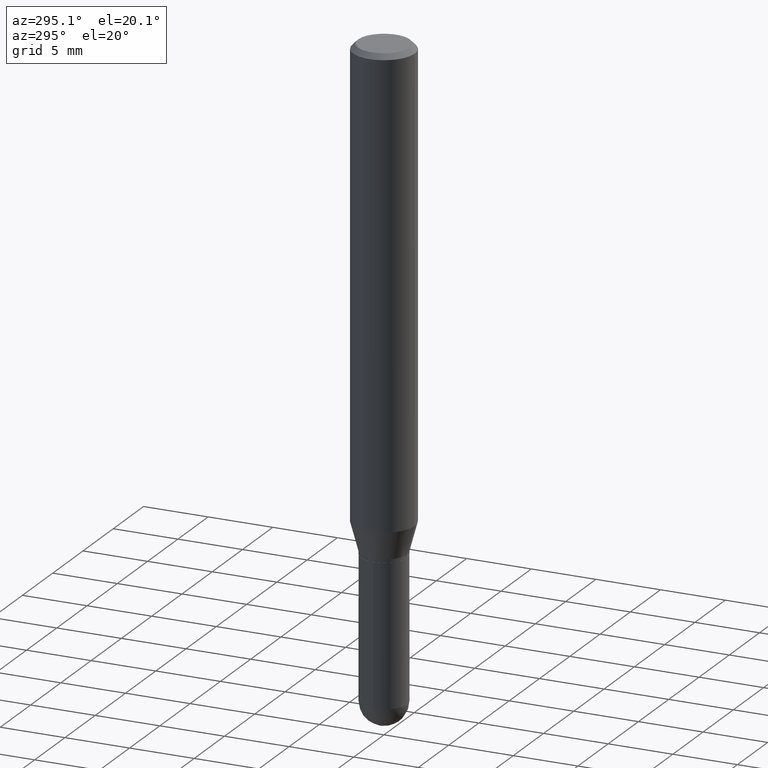
[diagram: clean part render]
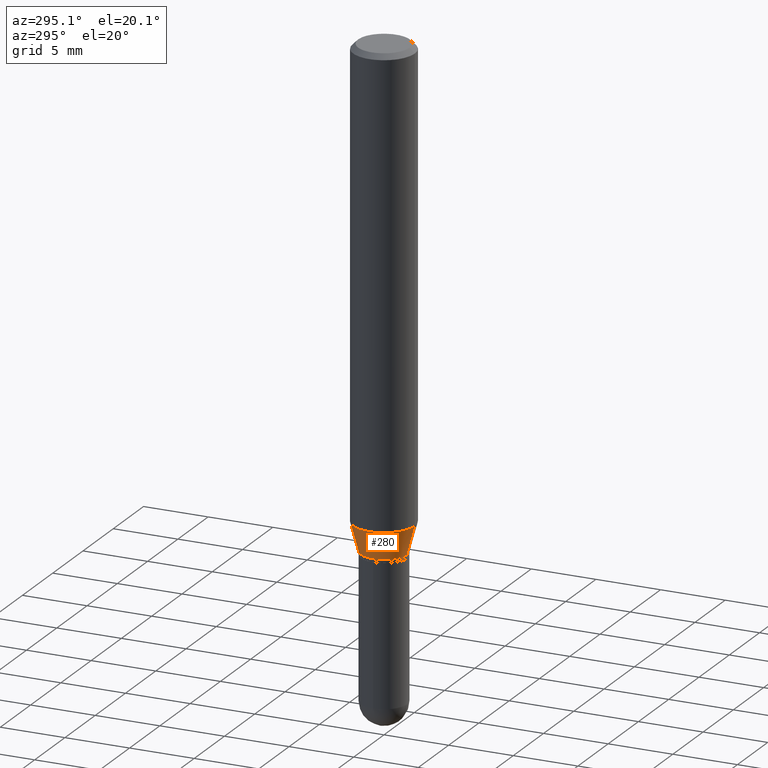
[diagram: same view with one face highlighted and labeled with its STEP entity id]
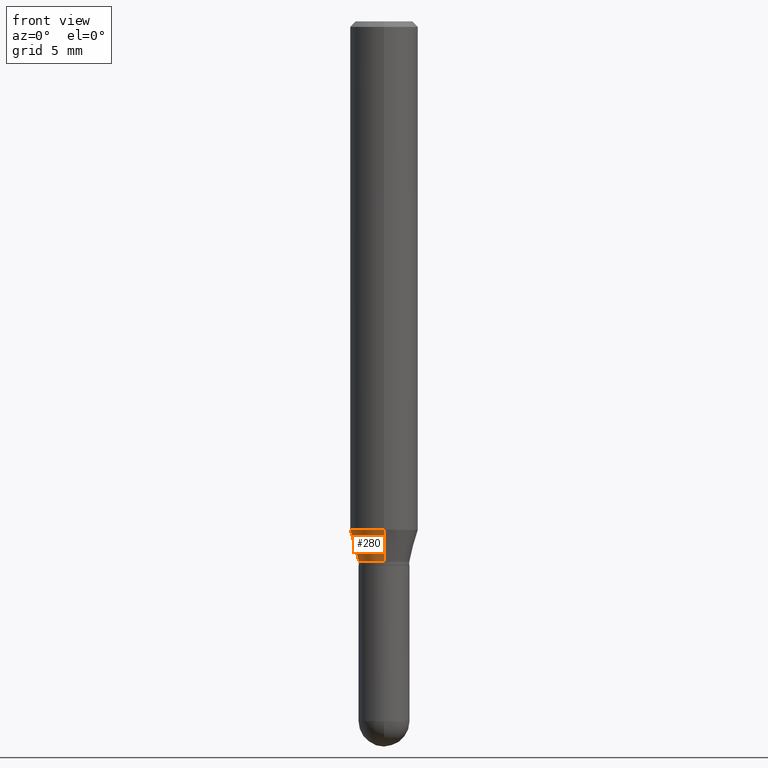
[diagram: same view with one face highlighted and labeled with its STEP entity id]
A machine part, auxiliary view. The second image highlights one B-rep face of the part: STEP entity #280.
A second angle (front view) of the same face is appended — the face is thin or edge-on in the first view.
In plain terms, the highlighted conical surface has half-angle 15 deg.
Its self-contained STEP definition (entity closure, byte-faithful):
#7 = VECTOR ( 'NONE', #241, 39.37007874015748854 ) ;
#30 = CARTESIAN_POINT ( 'NONE',  ( 6.661338147751283383E-16, 0.09374999999999512890, -1.402483408562509304 ) ) ;
#31 = EDGE_LOOP ( 'NONE', ( #50, #47, #40, #425 ) ) ;
#33 = VECTOR ( 'NONE', #164, 39.37007874015748143 ) ;
#40 = ORIENTED_EDGE ( 'NONE', *, *, #100, .T. ) ;
#47 = ORIENTED_EDGE ( 'NONE', *, *, #435, .T. ) ;
#50 = ORIENTED_EDGE ( 'NONE', *, *, #262, .F. ) ;
#62 = AXIS2_PLACEMENT_3D ( 'NONE', #192, #297, #208 ) ;
#66 = VERTEX_POINT ( 'NONE', #337 ) ;
#76 = CARTESIAN_POINT ( 'NONE',  ( 4.995115432393847559E-16, 0.07029999999999450577, -1.489999999999999991 ) ) ;
#80 = CARTESIAN_POINT ( 'NONE',  ( -4.909022762413059973E-16, -0.07030000000000491411, -1.489999999999999325 ) ) ;
#93 = DIRECTION ( 'NONE',  ( -6.982962677686265922E-15, -1.000000000000000000, 3.885985766236521163E-15 ) ) ;
#100 = EDGE_CURVE ( 'NONE', #66, #210, #287, .T. ) ;
#106 = AXIS2_PLACEMENT_3D ( 'NONE', #419, #219, #381 ) ;
#132 = CARTESIAN_POINT ( 'NONE',  ( 3.643083618691710256E-29, -5.203259373134758290E-15, -1.489999999999999769 ) ) ;
#138 = CIRCLE ( 'NONE', #144, 0.07029999999999970994 ) ;
#144 = AXIS2_PLACEMENT_3D ( 'NONE', #132, #307, #93 ) ;
#164 = DIRECTION ( 'NONE',  ( 1.839019923739605837E-15, 0.2588190451025257355, 0.9659258262890669799 ) ) ;
#187 = VERTEX_POINT ( 'NONE', #476 ) ;
#192 = CARTESIAN_POINT ( 'NONE',  ( 3.429103578000664545E-29, -4.897640900180445107E-15, -1.402483408562508860 ) ) ;
#208 = DIRECTION ( 'NONE',  ( -6.982962677686265922E-15, -1.000000000000000000, 2.913971193241880372E-15 ) ) ;
#210 = VERTEX_POINT ( 'NONE', #485 ) ;
#219 = DIRECTION ( 'NONE',  ( -2.445022562880343100E-29, 3.492120384654201603E-15, 1.000000000000000000 ) ) ;
#241 = DIRECTION ( 'NONE',  ( -1.807323732225335661E-15, -0.2588190451025189631, 0.9659258262890687563 ) ) ;
#262 = EDGE_CURVE ( 'NONE', #187, #286, #274, .T. ) ;
#274 = LINE ( 'NONE', #76, #33 ) ;
#280 = ADVANCED_FACE ( 'NONE', ( #368 ), #453, .T. ) ;
#286 = VERTEX_POINT ( 'NONE', #30 ) ;
#287 = LINE ( 'NONE', #80, #7 ) ;
#297 = DIRECTION ( 'NONE',  ( -2.445022562880343100E-29, 3.492120384654201603E-15, 1.000000000000000000 ) ) ;
#307 = DIRECTION ( 'NONE',  ( -2.445022562880343100E-29, 3.492120384654201603E-15, 1.000000000000000000 ) ) ;
#337 = CARTESIAN_POINT ( 'NONE',  ( -4.909022762413059973E-16, -0.07030000000000491411, -1.489999999999999325 ) ) ;
#358 = EDGE_CURVE ( 'NONE', #286, #210, #474, .T. ) ;
#368 = FACE_OUTER_BOUND ( 'NONE', #31, .T. ) ;
#381 = DIRECTION ( 'NONE',  ( -6.982962677686265922E-15, -1.000000000000000000, 3.885985766236521163E-15 ) ) ;
#419 = CARTESIAN_POINT ( 'NONE',  ( 3.643083618691710256E-29, -5.203259373134758290E-15, -1.489999999999999769 ) ) ;
#425 = ORIENTED_EDGE ( 'NONE', *, *, #358, .F. ) ;
#435 = EDGE_CURVE ( 'NONE', #187, #66, #138, .T. ) ;
#453 = CONICAL_SURFACE ( 'NONE', #106, 0.07029999999999970994, 0.2617993877991510732 ) ;
#474 = CIRCLE ( 'NONE', #62, 0.09375000000000001388 ) ;
#476 = CARTESIAN_POINT ( 'NONE',  ( 5.828226790072563992E-16, 0.07029999999999450577, -1.489999999999999991 ) ) ;
#485 = CARTESIAN_POINT ( 'NONE',  ( -6.546527510330530901E-16, -0.09375000000000488498, -1.402483408562508638 ) ) ;